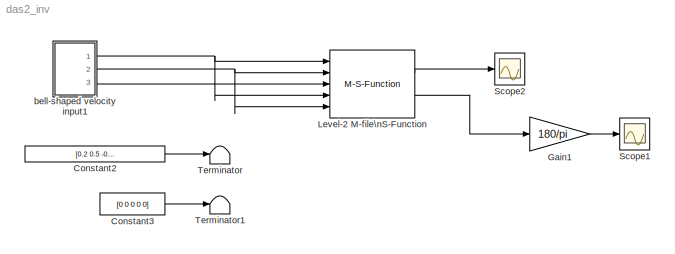
MODEL das2_inv
KIND model
BLOCK [Constant] Constant2
  ConRadixGroup = Use specified scaling
  FramePeriod = inf
  OutDataType = sfix(16)
  OutDataTypeMode = Inherit from 'Constant value'
  OutScaling = 2^0
  SampleTime = 0.002
  SamplingMode = Sample based
  Value = [0.2 0.5 -0.2 0.5 1.2]
  VectorParams1D = on
BLOCK [Constant] Constant3
  ConRadixGroup = Use specified scaling
  FramePeriod = inf
  OutDataType = sfix(16)
  OutDataTypeMode = Inherit from 'Constant value'
  OutScaling = 2^0
  SampleTime = 0.002
  SamplingMode = Sample based
  Value = [0 0 0 0 0]
  VectorParams1D = on
BLOCK [Gain] Gain1
  Gain = 180/pi
  OutDataTypeMode = Inherit via internal rule
  ParameterDataTypeMode = Inherit via internal rule
  SaturateOnIntegerOverflow = off
BLOCK [M-S-Function] Level-2 M-file\nS-Function
  FunctionName = das2_inverse
  Ports = [5, 2]
BLOCK [Scope] Scope1
  DataFormat = StructureWithTime
  Floating = off
  LimitDataPoints = off
  NumInputPorts = 1
  Ports = [1]
  SampleTime = 0
  SaveName = ScopeData1
  YMax = 80
  YMin = -40
  ZoomMode = yonly
BLOCK [Scope] Scope2
  DataFormat = Array
  Floating = off
  LimitDataPoints = off
  NumInputPorts = 1
  Ports = [1]
  SampleTime = 0
  SaveName = act
  SaveToWorkspace = on
  YMax = 1
  YMin = 5.55112e-017
  ZoomMode = yonly
BLOCK [Terminator] Terminator
BLOCK [Terminator] Terminator1
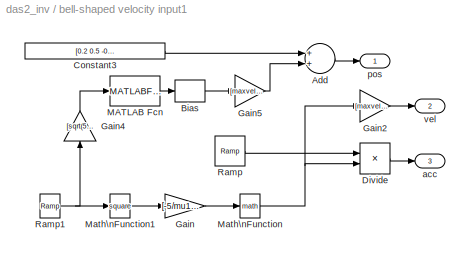
BLOCK [SubSystem] bell-shaped velocity input1
  FunctionWithSeparateData = off
  MaskHideContents = off
  MinAlgLoopOccurrences = off
  Ports = [0, 3]
  RTWSystemCode = Auto
BLOCK [Sum] bell-shaped velocity input1/Add
  InputSameDT = off
  OutDataTypeMode = Inherit via internal rule
  OutScaling = 2^-10
  Ports = [2, 1]
  SaturateOnIntegerOverflow = off
BLOCK [Bias] bell-shaped velocity input1/Bias
  Bias = 1
  SaturateOnIntegerOverflow = off
BLOCK [Constant] bell-shaped velocity input1/Constant3
  ConRadixGroup = Use specified scaling
  FramePeriod = inf
  OutDataType = sfix(16)
  OutDataTypeMode = Inherit from 'Constant value'
  OutScaling = 2^0
  SampleTime = 0.002
  SamplingMode = Sample based
  Value = [0.2 0.5 -0.2 0.5 1.2]
  VectorParams1D = on
BLOCK [Product] bell-shaped velocity input1/Divide
  InputSameDT = off
  Inputs = **
  OutDataTypeMode = Inherit via internal rule
  OutScaling = 2^-10
  Ports = [2, 1]
  RndMeth = Floor
  SaturateOnIntegerOverflow = off
BLOCK [Gain] bell-shaped velocity input1/Gain
  Gain = [-5/mu1^2 -5/mu2^2 -5/mu3^2 -5/mu4^2 -5/mu5^2]
  OutDataTypeMode = Inherit via internal rule
  ParameterDataTypeMode = Inherit via internal rule
  SaturateOnIntegerOverflow = off
BLOCK [Gain] bell-shaped velocity input1/Gain2
  Gain = [maxvel1 maxvel2 maxvel3 maxvel4 maxvel5]
  OutDataTypeMode = Inherit via internal rule
  ParameterDataTypeMode = Inherit via internal rule
  SaturateOnIntegerOverflow = off
BLOCK [Gain] bell-shaped velocity input1/Gain4
  Gain = [sqrt(5)/mu1 sqrt(5)/mu2 sqrt(5)/mu3 sqrt(5)/mu4 sqrt(5)/mu5]
  OutDataTypeMode = Inherit via internal rule
  ParameterDataTypeMode = Inherit via internal rule
  SaturateOnIntegerOverflow = off
BLOCK [Gain] bell-shaped velocity input1/Gain5
  Gain = [maxvel1*mu1/2*sqrt(pi/5) maxvel2*mu2/2*sqrt(pi/5) maxvel3*mu3/2*sqrt(pi/5) maxvel4*mu4/2*sqrt(pi/5) maxvel5*mu5/2*sqrt(pi/5)]
  OutDataTypeMode = Inherit via internal rule
  ParameterDataTypeMode = Inherit via internal rule
  SaturateOnIntegerOverflow = off
BLOCK [MATLABFcn] bell-shaped velocity input1/MATLAB Fcn
  MATLABFcn = erf(u)
BLOCK [Math] bell-shaped velocity input1/Math\nFunction
  Ports = [1, 1]
BLOCK [Math] bell-shaped velocity input1/Math\nFunction1
  Operator = square
  Ports = [1, 1]
BLOCK [Reference] bell-shaped velocity input1/Ramp  REF=simulink/Sources/Ramp
  FunctionWithSeparateData = off
  Ports = [0, 1]
  RTWMemSecDataConstants = Inherit from model
  RTWMemSecDataInternal = Inherit from model
  RTWMemSecDataParameters = Inherit from model
  RTWMemSecFuncExecute = Inherit from model
  RTWMemSecFuncInitTerm = Inherit from model
  ShowPortLabels = on
  SourceBlock = simulink/Sources/Ramp
  SourceType = Ramp
  SystemSampleTime = -1
  VectorParams1D = on
  X0 = [10*maxvel1/mu1 10*maxvel2/mu2 10*maxvel3/mu3 10*maxvel4/mu4 10*maxvel5/mu5]
  slope = [-10*maxvel1/mu1^2 -10*maxvel2/mu2^2 -10*maxvel3/mu3^2 -10*maxvel4/mu4^2 -10*maxvel5/mu5^2]
  start = 0
BLOCK [Reference] bell-shaped velocity input1/Ramp1  REF=simulink/Sources/Ramp
  FunctionWithSeparateData = off
  Ports = [0, 1]
  RTWMemSecDataConstants = Inherit from model
  RTWMemSecDataInternal = Inherit from model
  RTWMemSecDataParameters = Inherit from model
  RTWMemSecFuncExecute = Inherit from model
  RTWMemSecFuncInitTerm = Inherit from model
  ShowPortLabels = on
  SourceBlock = simulink/Sources/Ramp
  SourceType = Ramp
  SystemSampleTime = -1
  VectorParams1D = on
  X0 = [-mu1 -mu2 -mu3 -mu4 -mu5]
  slope = [1 1 1 1 1]
  start = 0
BLOCK [Outport] bell-shaped velocity input1/acc
  BusOutputAsStruct = off
  IconDisplay = Port number
  Port = 3
BLOCK [Outport] bell-shaped velocity input1/pos
  BusOutputAsStruct = off
  IconDisplay = Port number
BLOCK [Outport] bell-shaped velocity input1/vel
  BusOutputAsStruct = off
  IconDisplay = Port number
  Port = 2
LINE Constant2:1 -> Terminator:1
LINE Constant3:1 -> Terminator1:1
LINE Gain1:1 -> Scope1:1
LINE Level-2 M-file\nS-Function:1 -> Scope2:1
LINE Level-2 M-file\nS-Function:2 -> Gain1:1
LINE bell-shaped velocity input1/Add:1 -> bell-shaped velocity input1/pos:1
LINE bell-shaped velocity input1/Bias:1 -> bell-shaped velocity input1/Gain5:1
LINE bell-shaped velocity input1/Constant3:1 -> bell-shaped velocity input1/Add:1
LINE bell-shaped velocity input1/Divide:1 -> bell-shaped velocity input1/acc:1
LINE bell-shaped velocity input1/Gain2:1 -> bell-shaped velocity input1/vel:1
LINE bell-shaped velocity input1/Gain4:1 -> bell-shaped velocity input1/MATLAB Fcn:1
LINE bell-shaped velocity input1/Gain5:1 -> bell-shaped velocity input1/Add:2
LINE bell-shaped velocity input1/Gain:1 -> bell-shaped velocity input1/Math\nFunction:1
LINE bell-shaped velocity input1/MATLAB Fcn:1 -> bell-shaped velocity input1/Bias:1
LINE bell-shaped velocity input1/Math\nFunction1:1 -> bell-shaped velocity input1/Gain:1
NET bell-shaped velocity input1/Math\nFunction:1 -> bell-shaped velocity input1/Divide:2, bell-shaped velocity input1/Gain2:1
NET bell-shaped velocity input1/Ramp1:1 -> bell-shaped velocity input1/Gain4:1, bell-shaped velocity input1/Math\nFunction1:1
LINE bell-shaped velocity input1/Ramp:1 -> bell-shaped velocity input1/Divide:1
NET bell-shaped velocity input1:1 -> Level-2 M-file\nS-Function:1, Level-2 M-file\nS-Function:4
NET bell-shaped velocity input1:2 -> Level-2 M-file\nS-Function:2, Level-2 M-file\nS-Function:5
LINE bell-shaped velocity input1:3 -> Level-2 M-file\nS-Function:3
note: NET lines group one-source signal fan-out (src -> all destinations, sorted); 1:1 wires keep LINE
